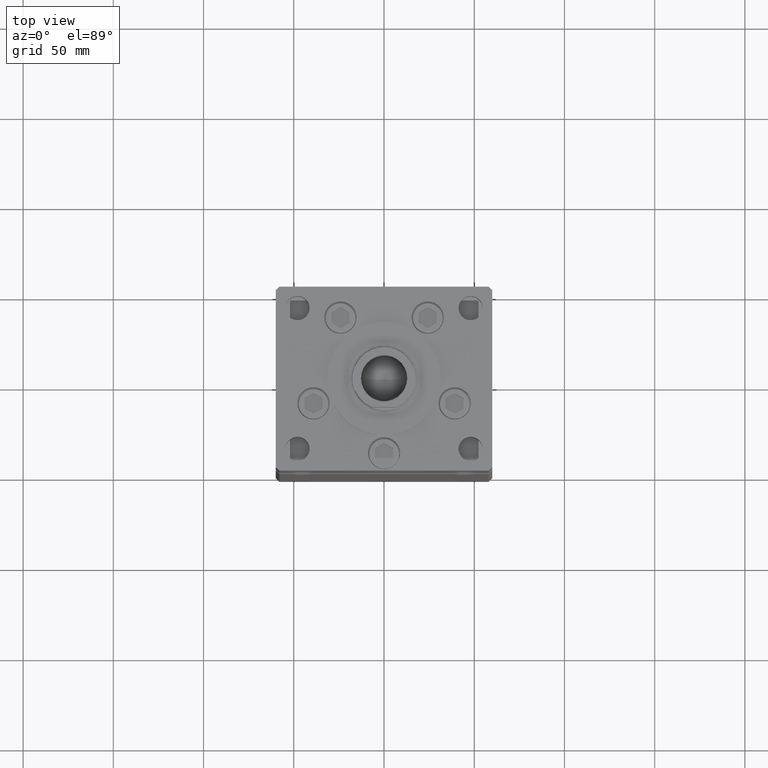
[diagram: clean part render]
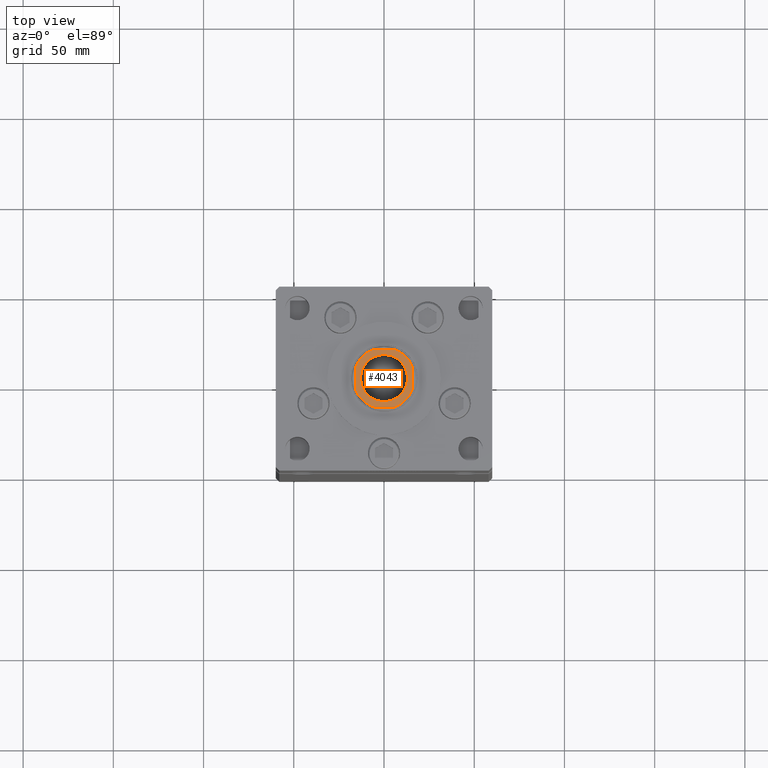
[diagram: same view with one face highlighted and labeled with its STEP entity id]
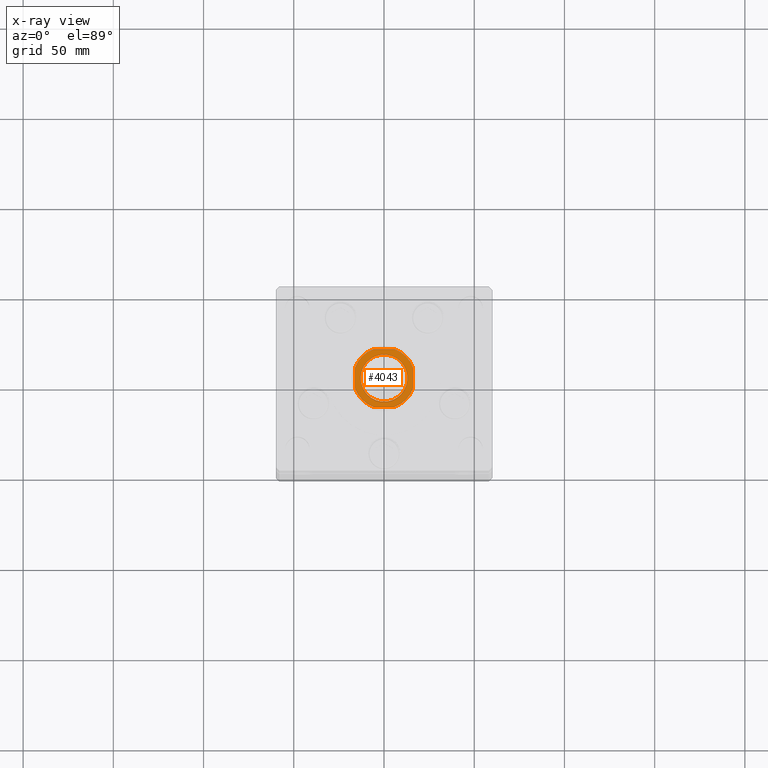
[diagram: x-ray of the same camera — body ghosted, the highlighted face saturated]
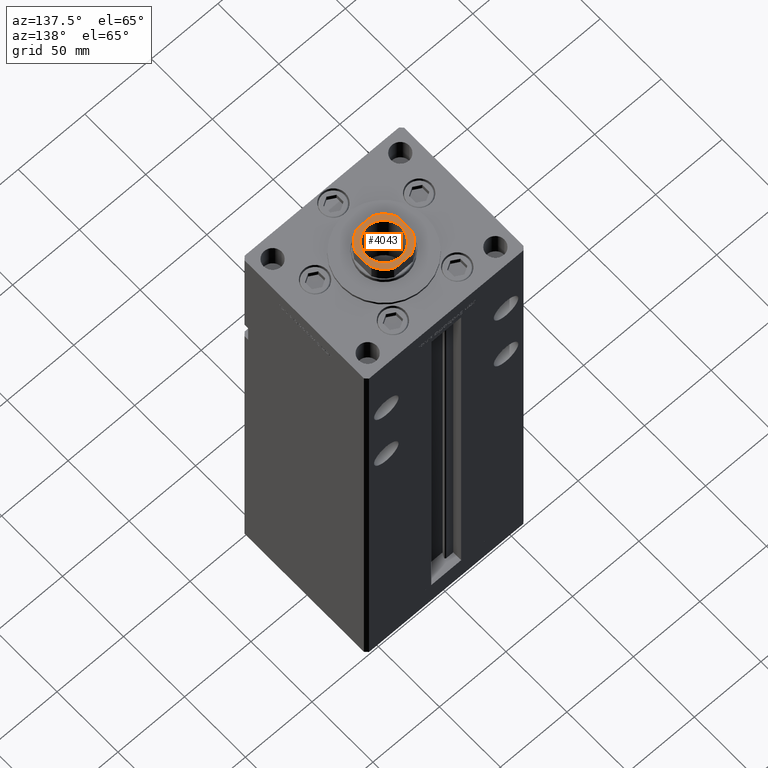
[diagram: same view with one face highlighted and labeled with its STEP entity id]
A machine part, top view. The second image highlights one B-rep face of the part: STEP entity #4043.
The next image is the same camera in x-ray: the body ghosted, the highlighted face saturated — about 0% of this face is hidden behind the body in this view.
A second angle (auxiliary view) of the same face is appended — the face is thin or edge-on in the first view.
In plain terms, the highlighted planar face has unit normal (0, 0, 1).
Its self-contained STEP definition (entity closure, byte-faithful):
#245 = AXIS2_PLACEMENT_3D ( 'NONE', #11589, #23945, #11848 ) ;
#1510 = EDGE_LOOP ( 'NONE', ( #20876, #5416 ) ) ;
#1716 = ORIENTED_EDGE ( 'NONE', *, *, #24181, .T. ) ;
#2079 = CARTESIAN_POINT ( 'NONE',  ( 5.744562646538024175, -16.00000000000000355, 339.2500000000000000 ) ) ;
#2221 = DIRECTION ( 'NONE',  ( 1.000000000000000000, 0.000000000000000000, 0.000000000000000000 ) ) ;
#2265 = VERTEX_POINT ( 'NONE', #34822 ) ;
#3386 = VECTOR ( 'NONE', #18737, 1000.000000000000000 ) ;
#3619 = DIRECTION ( 'NONE',  ( 1.084202172485504434E-16, -1.000000000000000000, 0.000000000000000000 ) ) ;
#3626 = VECTOR ( 'NONE', #3619, 1000.000000000000000 ) ;
#3759 = FACE_OUTER_BOUND ( 'NONE', #50908, .T. ) ;
#4043 = ADVANCED_FACE ( 'NONE', ( #44282, #3759 ), #8575, .T. ) ;
#4698 = CARTESIAN_POINT ( 'NONE',  ( 0.000000000000000000, 0.000000000000000000, 339.2500000000000000 ) ) ;
#5416 = ORIENTED_EDGE ( 'NONE', *, *, #38644, .T. ) ;
#5736 = EDGE_CURVE ( 'NONE', #38207, #48472, #12449, .T. ) ;
#6397 = CARTESIAN_POINT ( 'NONE',  ( -15.99999999999999645, -16.00000000000000355, 339.2500000000000000 ) ) ;
#6968 = AXIS2_PLACEMENT_3D ( 'NONE', #41300, #19887, #44542 ) ;
#7626 = EDGE_CURVE ( 'NONE', #35250, #41119, #47661, .T. ) ;
#7876 = AXIS2_PLACEMENT_3D ( 'NONE', #4698, #17316, #21084 ) ;
#8575 = PLANE ( 'NONE',  #6968 ) ;
#8709 = ORIENTED_EDGE ( 'NONE', *, *, #18116, .T. ) ;
#8803 = VECTOR ( 'NONE', #25965, 1000.000000000000000 ) ;
#10683 = LINE ( 'NONE', #42613, #48252 ) ;
#10939 = AXIS2_PLACEMENT_3D ( 'NONE', #23415, #51065, #2221 ) ;
#11343 = AXIS2_PLACEMENT_3D ( 'NONE', #23675, #40010, #47802 ) ;
#11589 = CARTESIAN_POINT ( 'NONE',  ( 0.000000000000000000, 0.000000000000000000, 339.2500000000000000 ) ) ;
#11848 = DIRECTION ( 'NONE',  ( 1.000000000000000000, 0.000000000000000000, 0.000000000000000000 ) ) ;
#12147 = CIRCLE ( 'NONE', #7876, 13.05000000000000426 ) ;
#12449 = LINE ( 'NONE', #28575, #3626 ) ;
#13551 = EDGE_CURVE ( 'NONE', #48472, #22266, #14848, .T. ) ;
#13981 = CARTESIAN_POINT ( 'NONE',  ( -16.00000000000000000, -5.744562646538033945, 339.2500000000000000 ) ) ;
#14848 = CIRCLE ( 'NONE', #22618, 17.00000000000000000 ) ;
#17316 = DIRECTION ( 'NONE',  ( 0.000000000000000000, -0.000000000000000000, -1.000000000000000000 ) ) ;
#17362 = CARTESIAN_POINT ( 'NONE',  ( 0.000000000000000000, 0.000000000000000000, 339.2500000000000000 ) ) ;
#18116 = EDGE_CURVE ( 'NONE', #19974, #38207, #32968, .T. ) ;
#18737 = DIRECTION ( 'NONE',  ( 1.000000000000000000, 1.084202172485504434E-16, 0.000000000000000000 ) ) ;
#18914 = DIRECTION ( 'NONE',  ( 1.000000000000000000, 0.000000000000000000, 0.000000000000000000 ) ) ;
#19834 = CARTESIAN_POINT ( 'NONE',  ( 16.00000000000000000, 5.744562646538033945, 339.2500000000000000 ) ) ;
#19887 = DIRECTION ( 'NONE',  ( -0.000000000000000000, 0.000000000000000000, 1.000000000000000000 ) ) ;
#19974 = VERTEX_POINT ( 'NONE', #21304 ) ;
#20876 = ORIENTED_EDGE ( 'NONE', *, *, #27511, .T. ) ;
#21084 = DIRECTION ( 'NONE',  ( 1.000000000000000000, 0.000000000000000000, 0.000000000000000000 ) ) ;
#21304 = CARTESIAN_POINT ( 'NONE',  ( -5.744562646538033945, 16.00000000000000000, 339.2500000000000000 ) ) ;
#22266 = VERTEX_POINT ( 'NONE', #45031 ) ;
#22576 = CARTESIAN_POINT ( 'NONE',  ( -13.05000000000000426, 1.598164072887296563E-15, 339.2500000000000000 ) ) ;
#22618 = AXIS2_PLACEMENT_3D ( 'NONE', #17362, #33727, #50084 ) ;
#23415 = CARTESIAN_POINT ( 'NONE',  ( 0.000000000000000000, 0.000000000000000000, 339.2500000000000000 ) ) ;
#23675 = CARTESIAN_POINT ( 'NONE',  ( 0.000000000000000000, 0.000000000000000000, 339.2500000000000000 ) ) ;
#23945 = DIRECTION ( 'NONE',  ( -0.000000000000000000, 0.000000000000000000, 1.000000000000000000 ) ) ;
#24181 = EDGE_CURVE ( 'NONE', #38353, #35250, #26858, .T. ) ;
#24399 = AXIS2_PLACEMENT_3D ( 'NONE', #27767, #35272, #18914 ) ;
#25965 = DIRECTION ( 'NONE',  ( -1.084202172485504434E-16, 1.000000000000000000, -0.000000000000000000 ) ) ;
#26787 = LINE ( 'NONE', #6397, #3386 ) ;
#26858 = CIRCLE ( 'NONE', #245, 17.00000000000000000 ) ;
#27511 = EDGE_CURVE ( 'NONE', #46932, #44424, #30684, .T. ) ;
#27767 = CARTESIAN_POINT ( 'NONE',  ( 0.000000000000000000, 0.000000000000000000, 339.2500000000000000 ) ) ;
#28528 = ORIENTED_EDGE ( 'NONE', *, *, #33612, .T. ) ;
#28575 = CARTESIAN_POINT ( 'NONE',  ( -16.00000000000000000, 15.99999999999999645, 339.2500000000000000 ) ) ;
#29143 = CARTESIAN_POINT ( 'NONE',  ( 13.05000000000000426, 0.000000000000000000, 339.2500000000000000 ) ) ;
#30255 = CIRCLE ( 'NONE', #11343, 17.00000000000000000 ) ;
#30261 = CARTESIAN_POINT ( 'NONE',  ( 16.00000000000000000, 16.00000000000000000, 339.2500000000000000 ) ) ;
#30684 = CIRCLE ( 'NONE', #10939, 13.05000000000000426 ) ;
#32429 = CARTESIAN_POINT ( 'NONE',  ( -16.00000000000000000, 5.744562646538029504, 339.2500000000000000 ) ) ;
#32968 = CIRCLE ( 'NONE', #24399, 17.00000000000000000 ) ;
#33612 = EDGE_CURVE ( 'NONE', #22266, #38353, #26787, .T. ) ;
#33727 = DIRECTION ( 'NONE',  ( -0.000000000000000000, 0.000000000000000000, 1.000000000000000000 ) ) ;
#34822 = CARTESIAN_POINT ( 'NONE',  ( 5.744562646538033057, 16.00000000000000000, 339.2500000000000000 ) ) ;
#35250 = VERTEX_POINT ( 'NONE', #49812 ) ;
#35272 = DIRECTION ( 'NONE',  ( -0.000000000000000000, 0.000000000000000000, 1.000000000000000000 ) ) ;
#38207 = VERTEX_POINT ( 'NONE', #32429 ) ;
#38353 = VERTEX_POINT ( 'NONE', #2079 ) ;
#38486 = ORIENTED_EDGE ( 'NONE', *, *, #46195, .T. ) ;
#38644 = EDGE_CURVE ( 'NONE', #44424, #46932, #12147, .T. ) ;
#39527 = ORIENTED_EDGE ( 'NONE', *, *, #5736, .T. ) ;
#40010 = DIRECTION ( 'NONE',  ( -0.000000000000000000, 0.000000000000000000, 1.000000000000000000 ) ) ;
#40597 = ORIENTED_EDGE ( 'NONE', *, *, #7626, .T. ) ;
#41119 = VERTEX_POINT ( 'NONE', #19834 ) ;
#41300 = CARTESIAN_POINT ( 'NONE',  ( 0.000000000000000000, 0.000000000000000000, 339.2500000000000000 ) ) ;
#42613 = CARTESIAN_POINT ( 'NONE',  ( -16.00000000000000000, 15.99999999999999645, 339.2500000000000000 ) ) ;
#44282 = FACE_BOUND ( 'NONE', #1510, .T. ) ;
#44424 = VERTEX_POINT ( 'NONE', #22576 ) ;
#44542 = DIRECTION ( 'NONE',  ( 1.000000000000000000, 0.000000000000000000, 0.000000000000000000 ) ) ;
#44891 = ORIENTED_EDGE ( 'NONE', *, *, #47723, .T. ) ;
#45031 = CARTESIAN_POINT ( 'NONE',  ( -5.744562646538029504, -16.00000000000000355, 339.2500000000000000 ) ) ;
#46195 = EDGE_CURVE ( 'NONE', #41119, #2265, #30255, .T. ) ;
#46370 = DIRECTION ( 'NONE',  ( -1.000000000000000000, -1.084202172485504434E-16, -0.000000000000000000 ) ) ;
#46932 = VERTEX_POINT ( 'NONE', #29143 ) ;
#47661 = LINE ( 'NONE', #30261, #8803 ) ;
#47723 = EDGE_CURVE ( 'NONE', #2265, #19974, #10683, .T. ) ;
#47802 = DIRECTION ( 'NONE',  ( 1.000000000000000000, 0.000000000000000000, 0.000000000000000000 ) ) ;
#48252 = VECTOR ( 'NONE', #46370, 1000.000000000000000 ) ;
#48472 = VERTEX_POINT ( 'NONE', #13981 ) ;
#49812 = CARTESIAN_POINT ( 'NONE',  ( 16.00000000000000355, -5.744562646538033057, 339.2500000000000000 ) ) ;
#50084 = DIRECTION ( 'NONE',  ( 1.000000000000000000, 0.000000000000000000, 0.000000000000000000 ) ) ;
#50908 = EDGE_LOOP ( 'NONE', ( #39527, #52148, #28528, #1716, #40597, #38486, #44891, #8709 ) ) ;
#51065 = DIRECTION ( 'NONE',  ( 0.000000000000000000, -0.000000000000000000, -1.000000000000000000 ) ) ;
#52148 = ORIENTED_EDGE ( 'NONE', *, *, #13551, .T. ) ;